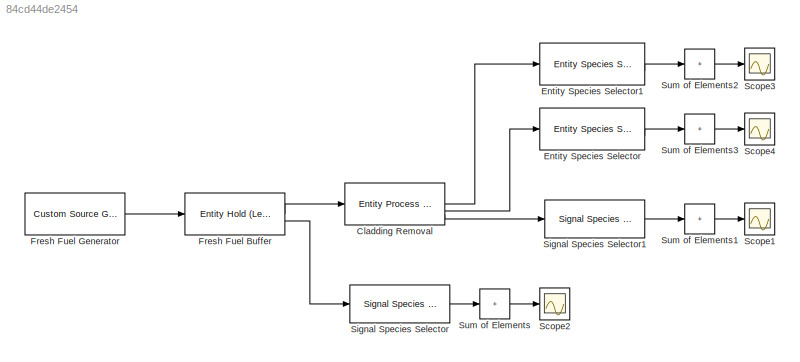
MODEL slx_84cd44de2454
KIND model
CONFIG AbsTol = auto
CONFIG EnableMultiTasking = off
CONFIG FixedStep = auto
CONFIG MaxStep = 1
CONFIG MinStep = auto
CONFIG RelTol = 1e-3
CONFIG SampleTimeConstraint = Unconstrained
CONFIG SolverName = ode45
CONFIG StartTime = 0.0
CONFIG StopTime = 240
BLOCK [Reference] Cladding Removal  REF=F3M_commonLib/Entity Process and Hold
  SourceBlock = F3M_commonLib/Entity Process and Hold
  SourceProductName = Fissile Facility Flow Modeler
BLOCK [Reference] Entity Species Selector  REF=F3M_commonLib/Entity Species Selector
  SourceBlock = F3M_commonLib/Entity Species Selector
  SourceProductName = Fissile Facility Flow Modeler
BLOCK [Reference] Entity Species Selector1  REF=F3M_commonLib/Entity Species Selector
  SourceBlock = F3M_commonLib/Entity Species Selector
  SourceProductName = Fissile Facility Flow Modeler
BLOCK [Reference] Fresh Fuel Buffer  REF=F3M_commonLib/Entity Hold (Level)
  SourceBlock = F3M_commonLib/Entity Hold (Level)
  SourceProductName = Fissile Facility Flow Modeler
BLOCK [Reference] Fresh Fuel Generator  REF=F3M_commonLib/Custom Source Generator
  SourceBlock = F3M_commonLib/Custom Source Generator
  SourceProductName = Fissile Facility Flow Modeler
BLOCK [Scope] Scope1
  Floating = off
  NumInputPorts = 1
  ScopeSpecificationString = Simulink.scopes.TimeScopeBlockCfg('CurrentConfiguration', extmgr.ConfigurationSet(extmgr.Configuration('Core','General UI',true),extmgr.Configuration('Core','Source UI',true),extmgr.Configuration('Sources','WiredSimulink',true,'DataLoggingVariableName','ScopeData1'),extmgr.Configuration('Visuals','Time Domain',true,'SerializedDisplays',{struct('MinYLimReal','-12.5','MaxYLimReal','112.5','YLabelRea...<+1391ch>
BLOCK [Scope] Scope2
  Floating = off
  NumInputPorts = 1
  ScopeSpecificationString = Simulink.scopes.TimeScopeBlockCfg('CurrentConfiguration', extmgr.ConfigurationSet(extmgr.Configuration('Core','General UI',true),extmgr.Configuration('Core','Source UI',true),extmgr.Configuration('Sources','WiredSimulink',true),extmgr.Configuration('Visuals','Time Domain',true,'SerializedDisplays',{struct('MinYLimReal','-12.5','MaxYLimReal','112.5','YLabelReal','','MinYLimMag','0.00000','MaxYLimMa...<+1352ch>
BLOCK [Scope] Scope3
  Floating = off
  NumInputPorts = 1
  ScopeSpecificationString = Simulink.scopes.TimeScopeBlockCfg('CurrentConfiguration', extmgr.ConfigurationSet(extmgr.Configuration('Core','General UI',true),extmgr.Configuration('Core','Source UI',true),extmgr.Configuration('Sources','WiredSimulink',true,'DataLoggingVariableName','ScopeData2'),extmgr.Configuration('Visuals','Time Domain',true,'SerializedDisplays',{struct('MinYLimReal','-0.87963','MaxYLimReal','7.42639','YLab...<+1475ch>
BLOCK [Scope] Scope4
  Floating = off
  NumInputPorts = 1
  ScopeSpecificationString = Simulink.scopes.TimeScopeBlockCfg('CurrentConfiguration', extmgr.ConfigurationSet(extmgr.Configuration('Core','General UI',true),extmgr.Configuration('Core','Source UI',true),extmgr.Configuration('Sources','WiredSimulink',true,'DataLoggingVariableName','ScopeData3'),extmgr.Configuration('Visuals','Time Domain',true,'SerializedDisplays',{struct('MinYLimReal','-87.08288','MaxYLimReal','783.74588','Y...<+1440ch>
BLOCK [Reference] Signal Species Selector  REF=F3M_commonLib/Signal Species Selector
  SourceBlock = F3M_commonLib/Signal Species Selector
  SourceProductName = Fissile Facility Flow Modeler
BLOCK [Reference] Signal Species Selector1  REF=F3M_commonLib/Signal Species Selector
  SourceBlock = F3M_commonLib/Signal Species Selector
  SourceProductName = Fissile Facility Flow Modeler
BLOCK [Sum] Sum of Elements
  IconShape = rectangular
  Inputs = +
BLOCK [Sum] Sum of Elements1
  IconShape = rectangular
  Inputs = +
BLOCK [Sum] Sum of Elements2
  IconShape = rectangular
  Inputs = +
BLOCK [Sum] Sum of Elements3
  IconShape = rectangular
  Inputs = +
LINE Cladding Removal:1 -> Entity Species Selector1:1
LINE Cladding Removal:2 -> Entity Species Selector:1
LINE Cladding Removal:3 -> Signal Species Selector1:1
LINE Entity Species Selector1:2 -> Sum of Elements2:1
LINE Entity Species Selector:2 -> Sum of Elements3:1
LINE Fresh Fuel Buffer:1 -> Cladding Removal:1
LINE Fresh Fuel Buffer:2 -> Signal Species Selector:1
LINE Fresh Fuel Generator:1 -> Fresh Fuel Buffer:1
LINE Signal Species Selector1:1 -> Sum of Elements1:1
LINE Signal Species Selector:1 -> Sum of Elements:1
LINE Sum of Elements1:1 -> Scope1:1
LINE Sum of Elements2:1 -> Scope3:1
LINE Sum of Elements3:1 -> Scope4:1
LINE Sum of Elements:1 -> Scope2:1
